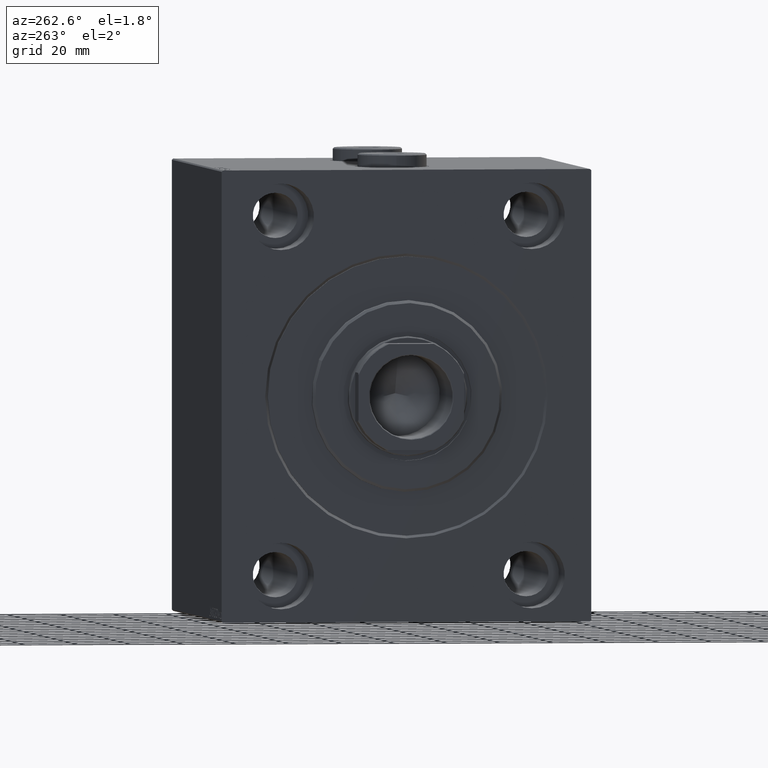
[diagram: clean part render]
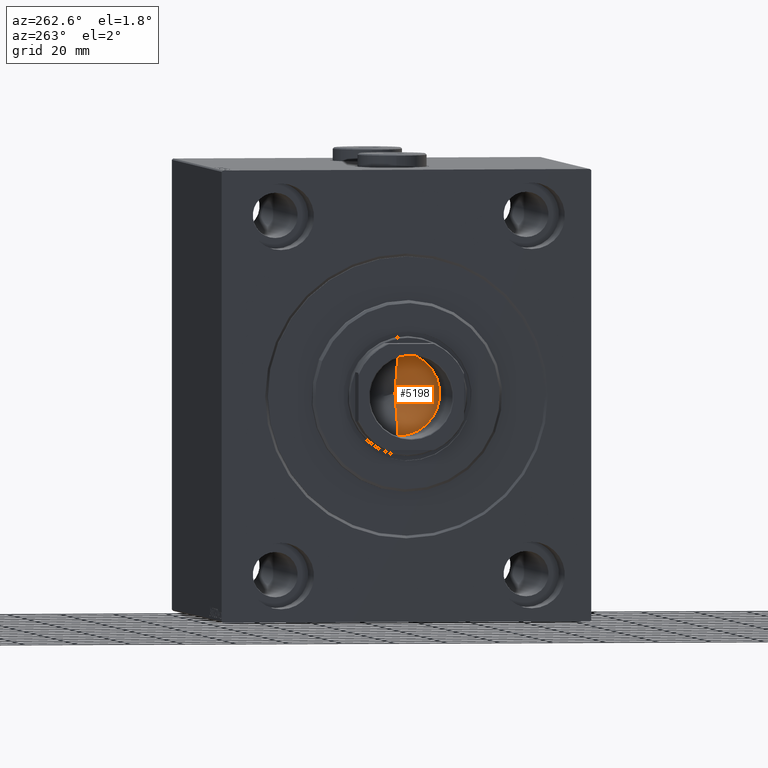
[diagram: same view with one face highlighted and labeled with its STEP entity id]
A machine part, auxiliary view. The second image highlights one B-rep face of the part: STEP entity #5198.
In plain terms, the highlighted conical surface has half-angle 59 deg.
Its self-contained STEP definition (entity closure, byte-faithful):
#1231 = EDGE_CURVE ( 'NONE', #22245, #26758, #31277, .T. ) ;
#3017 = DIRECTION ( 'NONE',  ( 1.000000000000000000, 0.000000000000000000, 0.000000000000000000 ) ) ;
#4655 = VECTOR ( 'NONE', #29909, 1000.000000000000000 ) ;
#5198 = ADVANCED_FACE ( 'NONE', ( #38978 ), #36514, .F. ) ;
#7033 = CARTESIAN_POINT ( 'NONE',  ( 15.74999999999999289, 0.000000000000000000, 26.99999999999998934 ) ) ;
#9933 = EDGE_CURVE ( 'NONE', #42795, #26758, #27782, .T. ) ;
#10288 = AXIS2_PLACEMENT_3D ( 'NONE', #22293, #39200, #21836 ) ;
#13821 = ORIENTED_EDGE ( 'NONE', *, *, #9933, .F. ) ;
#15240 = CARTESIAN_POINT ( 'NONE',  ( -1.199718644317817648E-14, 0.000000000000000000, 17.53644525031590362 ) ) ;
#15935 = EDGE_LOOP ( 'NONE', ( #13821, #31592, #39931 ) ) ;
#21121 = CARTESIAN_POINT ( 'NONE',  ( -15.74999999999999289, 1.928818708657080556E-15, 26.99999999999998934 ) ) ;
#21836 = DIRECTION ( 'NONE',  ( 1.000000000000000000, 0.000000000000000000, 0.000000000000000000 ) ) ;
#22245 = VERTEX_POINT ( 'NONE', #21121 ) ;
#22293 = CARTESIAN_POINT ( 'NONE',  ( 0.000000000000000000, 0.000000000000000000, 26.99999999999998934 ) ) ;
#23549 = CARTESIAN_POINT ( 'NONE',  ( 0.000000000000000000, 0.000000000000000000, 26.99999999999998934 ) ) ;
#24223 = CARTESIAN_POINT ( 'NONE',  ( 15.74999999999999289, 0.000000000000000000, 26.99999999999998934 ) ) ;
#26481 = LINE ( 'NONE', #43406, #4655 ) ;
#26758 = VERTEX_POINT ( 'NONE', #24223 ) ;
#27782 = LINE ( 'NONE', #7033, #34568 ) ;
#29909 = DIRECTION ( 'NONE',  ( -0.8571673007021118895, 1.049727191138618079E-16, 0.5150380749100549327 ) ) ;
#31207 = DIRECTION ( 'NONE',  ( 0.8571673007021118895, 0.000000000000000000, 0.5150380749100549327 ) ) ;
#31277 = CIRCLE ( 'NONE', #33507, 15.74999999999999289 ) ;
#31592 = ORIENTED_EDGE ( 'NONE', *, *, #40823, .T. ) ;
#33507 = AXIS2_PLACEMENT_3D ( 'NONE', #23549, #33828, #3017 ) ;
#33828 = DIRECTION ( 'NONE',  ( -0.000000000000000000, -0.000000000000000000, 1.000000000000000000 ) ) ;
#34568 = VECTOR ( 'NONE', #31207, 1000.000000000000000 ) ;
#36514 = CONICAL_SURFACE ( 'NONE', #10288, 15.74999999999999289, 1.029744258676653645 ) ;
#38978 = FACE_OUTER_BOUND ( 'NONE', #15935, .T. ) ;
#39200 = DIRECTION ( 'NONE',  ( -0.000000000000000000, -0.000000000000000000, 1.000000000000000000 ) ) ;
#39931 = ORIENTED_EDGE ( 'NONE', *, *, #1231, .T. ) ;
#40823 = EDGE_CURVE ( 'NONE', #42795, #22245, #26481, .T. ) ;
#42795 = VERTEX_POINT ( 'NONE', #15240 ) ;
#43406 = CARTESIAN_POINT ( 'NONE',  ( -15.74999999999999289, 1.928818708657080556E-15, 26.99999999999998934 ) ) ;